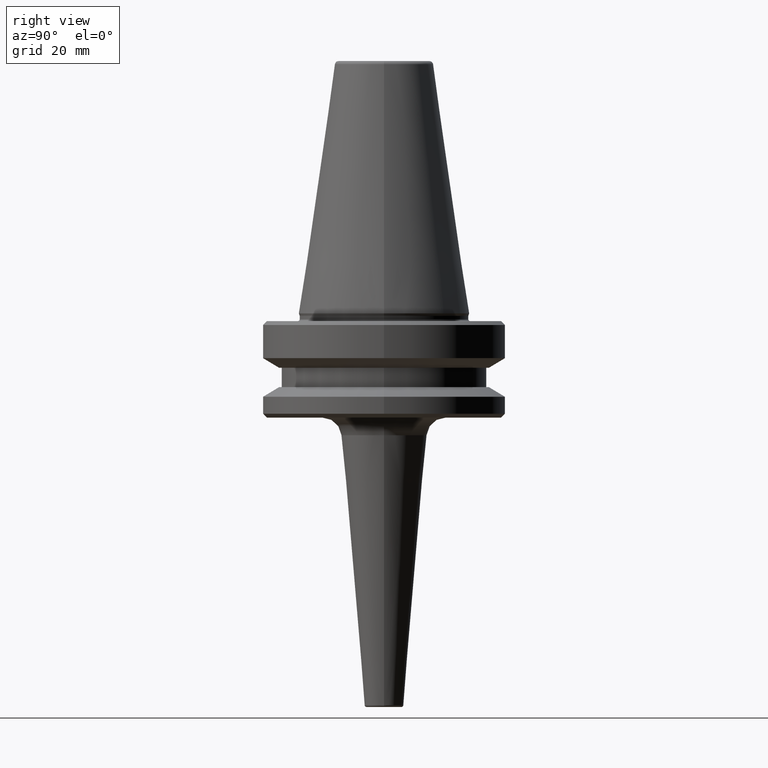
[diagram: clean part render]
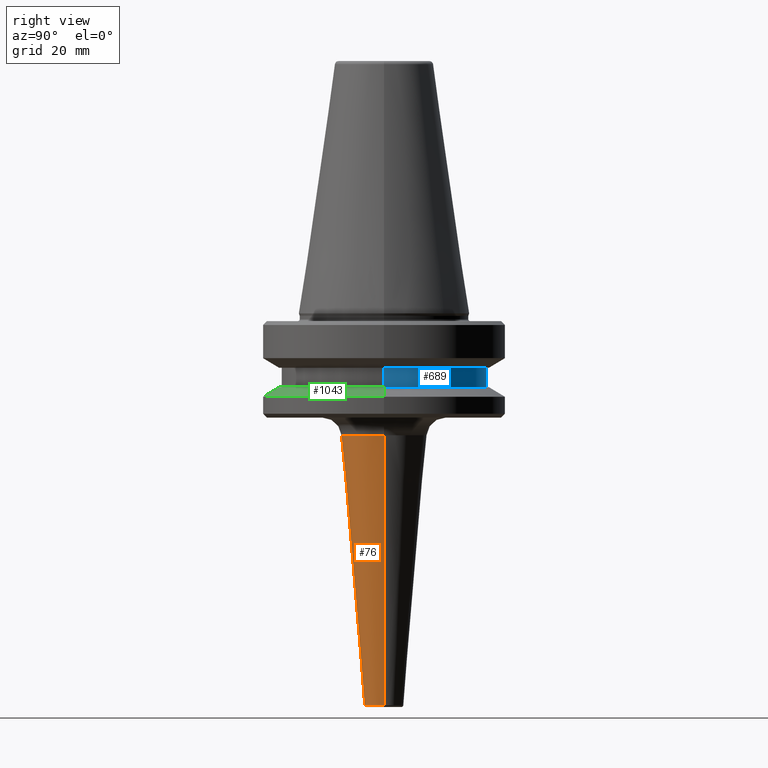
[diagram: same view with three faces highlighted in distinct colors, each labeled with its STEP entity id]
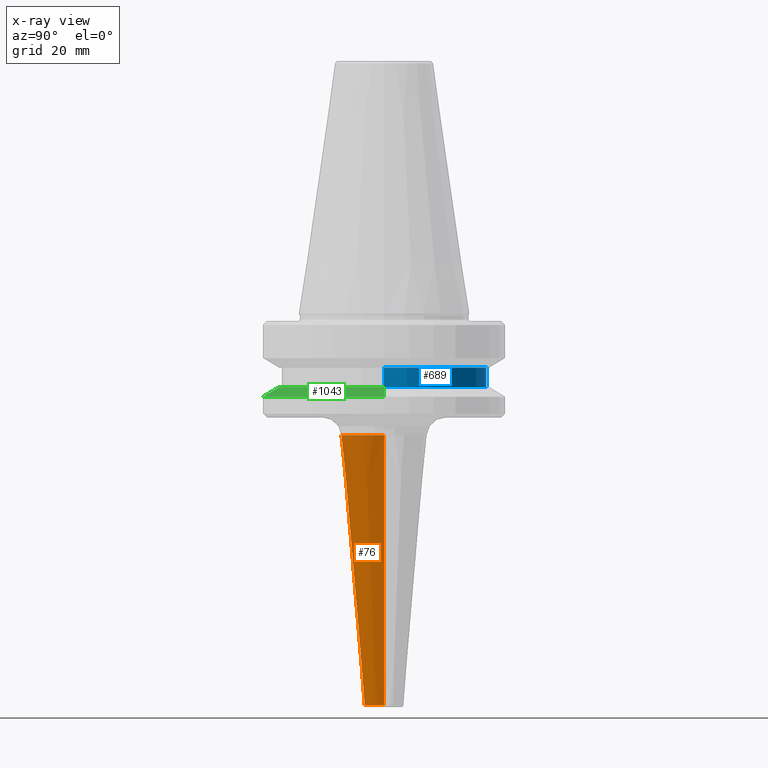
[diagram: x-ray of the same camera — body ghosted, the three highlighted faces saturated]
A machine part, right view with three faces highlighted in distinct colors.
The next image is the same camera in x-ray (body ghosted, the three faces saturated) — at least one of them is partly hidden behind the body in this view.
Their STEP definitions:

[orange] entity #76 — the highlighted conical surface has half-angle 4.953 deg.
#7 = ORIENTED_EDGE ( 'NONE', *, *, #261, .F. ) ;
#50 = VERTEX_POINT ( 'NONE', #683 ) ;
#76 = ADVANCED_FACE ( 'NONE', ( #908 ), #854, .T. ) ;
#112 = DIRECTION ( 'NONE',  ( -0.0000000000000000000, -0.0000000000000000000, 1.000000000000000000 ) ) ;
#117 = AXIS2_PLACEMENT_3D ( 'NONE', #180, #112, #257 ) ;
#154 = CARTESIAN_POINT ( 'NONE',  ( 11.10408196984262800, 0.0000000000000000000, -96.96828496336233600 ) ) ;
#180 = CARTESIAN_POINT ( 'NONE',  ( 0.0000000000000000000, 0.0000000000000000000, -96.96828496336233600 ) ) ;
#225 = EDGE_LOOP ( 'NONE', ( #646, #866, #425, #7 ) ) ;
#239 = CIRCLE ( 'NONE', #499, 11.10408196984262800 ) ;
#257 = DIRECTION ( 'NONE',  ( 1.000000000000000000, 0.0000000000000000000, 0.0000000000000000000 ) ) ;
#261 = EDGE_CURVE ( 'NONE', #685, #300, #239, .T. ) ;
#280 = CARTESIAN_POINT ( 'NONE',  ( 0.0000000000000000000, 0.0000000000000000000, -96.96828496336233600 ) ) ;
#296 = DIRECTION ( 'NONE',  ( -0.0000000000000000000, -0.0000000000000000000, 1.000000000000000000 ) ) ;
#300 = VERTEX_POINT ( 'NONE', #154 ) ;
#311 = EDGE_CURVE ( 'NONE', #50, #670, #507, .T. ) ;
#357 = DIRECTION ( 'NONE',  ( 1.000000000000000000, 0.0000000000000000000, 0.0000000000000000000 ) ) ;
#382 = EDGE_CURVE ( 'NONE', #670, #300, #665, .T. ) ;
#402 = VECTOR ( 'NONE', #805, 1000.000000000000200 ) ;
#425 = ORIENTED_EDGE ( 'NONE', *, *, #382, .T. ) ;
#443 = CARTESIAN_POINT ( 'NONE',  ( -11.10408196984262800, 1.359857844183761100E-015, -96.96828496336233600 ) ) ;
#449 = VECTOR ( 'NONE', #505, 1000.000000000000200 ) ;
#499 = AXIS2_PLACEMENT_3D ( 'NONE', #280, #829, #357 ) ;
#505 = DIRECTION ( 'NONE',  ( 0.08634300732914700100, 0.0000000000000000000, 0.9962654691824658300 ) ) ;
#507 = CIRCLE ( 'NONE', #761, 5.039591803015714100 ) ;
#547 = EDGE_CURVE ( 'NONE', #50, #685, #832, .T. ) ;
#558 = CARTESIAN_POINT ( 'NONE',  ( -11.10408196984262800, 1.664876173667597200E-015, -96.96828496336233600 ) ) ;
#636 = CARTESIAN_POINT ( 'NONE',  ( 5.039591803015705200, 0.0000000000000000000, -166.9431715036729100 ) ) ;
#646 = ORIENTED_EDGE ( 'NONE', *, *, #547, .F. ) ;
#665 = LINE ( 'NONE', #740, #449 ) ;
#670 = VERTEX_POINT ( 'NONE', #636 ) ;
#683 = CARTESIAN_POINT ( 'NONE',  ( -5.039591803015705200, 6.171719970572423100E-016, -166.9431715036729100 ) ) ;
#685 = VERTEX_POINT ( 'NONE', #558 ) ;
#710 = CARTESIAN_POINT ( 'NONE',  ( 0.0000000000000000000, 0.0000000000000000000, -166.9431715036729100 ) ) ;
#740 = CARTESIAN_POINT ( 'NONE',  ( 11.10408196984262800, 0.0000000000000000000, -96.96828496336233600 ) ) ;
#761 = AXIS2_PLACEMENT_3D ( 'NONE', #710, #296, #853 ) ;
#805 = DIRECTION ( 'NONE',  ( -0.08634300732914700100, 1.057396875543963500E-017, 0.9962654691824658300 ) ) ;
#829 = DIRECTION ( 'NONE',  ( -0.0000000000000000000, -0.0000000000000000000, 1.000000000000000000 ) ) ;
#832 = LINE ( 'NONE', #443, #402 ) ;
#853 = DIRECTION ( 'NONE',  ( 1.000000000000000000, 0.0000000000000000000, 0.0000000000000000000 ) ) ;
#854 = CONICAL_SURFACE ( 'NONE', #117, 11.10408196984262800, 0.08645065168737400800 ) ;
#866 = ORIENTED_EDGE ( 'NONE', *, *, #311, .T. ) ;
#908 = FACE_OUTER_BOUND ( 'NONE', #225, .T. ) ;

[blue] entity #689 — the highlighted cylindrical surface (partial cylindrical patch) has radius 26.5 mm, axis along (-0, -0, 1).
#2 = CARTESIAN_POINT ( 'NONE',  ( -26.50000000000019200, 3.245314017740509400E-015, 6.357346922996331500 ) ) ;
#10 = EDGE_LOOP ( 'NONE', ( #1039, #39, #16, #403 ) ) ;
#14 = DIRECTION ( 'NONE',  ( 1.000000000000000000, 0.0000000000000000000, 0.0000000000000000000 ) ) ;
#16 = ORIENTED_EDGE ( 'NONE', *, *, #937, .F. ) ;
#30 = EDGE_CURVE ( 'NONE', #159, #913, #106, .T. ) ;
#39 = ORIENTED_EDGE ( 'NONE', *, *, #567, .T. ) ;
#59 = LINE ( 'NONE', #276, #447 ) ;
#62 = DIRECTION ( 'NONE',  ( -0.0000000000000000000, -0.0000000000000000000, 1.000000000000000000 ) ) ;
#96 = AXIS2_PLACEMENT_3D ( 'NONE', #529, #62, #608 ) ;
#106 = CIRCLE ( 'NONE', #267, 26.50000000000019200 ) ;
#108 = DIRECTION ( 'NONE',  ( -0.0000000000000000000, -0.0000000000000000000, 1.000000000000000000 ) ) ;
#134 = VERTEX_POINT ( 'NONE', #879 ) ;
#159 = VERTEX_POINT ( 'NONE', #160 ) ;
#160 = CARTESIAN_POINT ( 'NONE',  ( 26.50000000000019200, 0.0000000000000000000, -84.50000000000068200 ) ) ;
#244 = DIRECTION ( 'NONE',  ( -0.0000000000000000000, -0.0000000000000000000, 1.000000000000000000 ) ) ;
#249 = EDGE_CURVE ( 'NONE', #159, #134, #59, .T. ) ;
#253 = VERTEX_POINT ( 'NONE', #580 ) ;
#254 = CIRCLE ( 'NONE', #96, 26.50000000000019200 ) ;
#267 = AXIS2_PLACEMENT_3D ( 'NONE', #441, #997, #14 ) ;
#276 = CARTESIAN_POINT ( 'NONE',  ( 26.50000000000019200, 0.0000000000000000000, 6.357346922996331500 ) ) ;
#292 = FACE_OUTER_BOUND ( 'NONE', #10, .T. ) ;
#326 = CARTESIAN_POINT ( 'NONE',  ( 0.0000000000000000000, 0.0000000000000000000, 6.357346922996331500 ) ) ;
#354 = DIRECTION ( 'NONE',  ( -0.0000000000000000000, -0.0000000000000000000, 1.000000000000000000 ) ) ;
#366 = LINE ( 'NONE', #2, #760 ) ;
#403 = ORIENTED_EDGE ( 'NONE', *, *, #249, .F. ) ;
#430 = AXIS2_PLACEMENT_3D ( 'NONE', #326, #108, #650 ) ;
#441 = CARTESIAN_POINT ( 'NONE',  ( 0.0000000000000000000, 0.0000000000000000000, -84.50000000000068200 ) ) ;
#447 = VECTOR ( 'NONE', #354, 1000.000000000000000 ) ;
#529 = CARTESIAN_POINT ( 'NONE',  ( 0.0000000000000000000, 0.0000000000000000000, -79.50000000000012800 ) ) ;
#567 = EDGE_CURVE ( 'NONE', #913, #253, #366, .T. ) ;
#580 = CARTESIAN_POINT ( 'NONE',  ( -26.50000000000019200, 3.245314017740509400E-015, -79.50000000000012800 ) ) ;
#591 = CARTESIAN_POINT ( 'NONE',  ( -26.50000000000019200, 3.245314017740509400E-015, -84.50000000000068200 ) ) ;
#608 = DIRECTION ( 'NONE',  ( 1.000000000000000000, 0.0000000000000000000, 0.0000000000000000000 ) ) ;
#650 = DIRECTION ( 'NONE',  ( 1.000000000000000000, 0.0000000000000000000, 0.0000000000000000000 ) ) ;
#689 = ADVANCED_FACE ( 'NONE', ( #292 ), #911, .T. ) ;
#760 = VECTOR ( 'NONE', #244, 1000.000000000000000 ) ;
#879 = CARTESIAN_POINT ( 'NONE',  ( 26.50000000000019200, 0.0000000000000000000, -79.50000000000012800 ) ) ;
#911 = CYLINDRICAL_SURFACE ( 'NONE', #430, 26.50000000000019200 ) ;
#913 = VERTEX_POINT ( 'NONE', #591 ) ;
#937 = EDGE_CURVE ( 'NONE', #134, #253, #254, .T. ) ;
#997 = DIRECTION ( 'NONE',  ( -0.0000000000000000000, -0.0000000000000000000, 1.000000000000000000 ) ) ;
#1039 = ORIENTED_EDGE ( 'NONE', *, *, #30, .T. ) ;

[green] entity #1043 — the highlighted conical surface has half-angle 60 deg.
#13 = DIRECTION ( 'NONE',  ( 1.000000000000000000, 0.0000000000000000000, 0.0000000000000000000 ) ) ;
#29 = VECTOR ( 'NONE', #576, 1000.000000000000000 ) ;
#49 = ORIENTED_EDGE ( 'NONE', *, *, #589, .T. ) ;
#67 = DIRECTION ( 'NONE',  ( 0.0000000000000000000, 0.0000000000000000000, -1.000000000000000000 ) ) ;
#86 = CARTESIAN_POINT ( 'NONE',  ( 0.0000000000000000000, 0.0000000000000000000, -87.00014200631733300 ) ) ;
#158 = DIRECTION ( 'NONE',  ( 1.000000000000000000, 0.0000000000000000000, 0.0000000000000000000 ) ) ;
#166 = ORIENTED_EDGE ( 'NONE', *, *, #647, .T. ) ;
#171 = CARTESIAN_POINT ( 'NONE',  ( -31.50000000000008500, 3.857637417314172900E-015, -87.00014200631733300 ) ) ;
#184 = VERTEX_POINT ( 'NONE', #171 ) ;
#189 = CARTESIAN_POINT ( 'NONE',  ( 31.50000000000008500, 3.857637417314172900E-015, -87.00014200631733300 ) ) ;
#195 = ORIENTED_EDGE ( 'NONE', *, *, #393, .F. ) ;
#202 = AXIS2_PLACEMENT_3D ( 'NONE', #86, #627, #158 ) ;
#245 = LINE ( 'NONE', #189, #29 ) ;
#283 = VERTEX_POINT ( 'NONE', #1042 ) ;
#340 = EDGE_LOOP ( 'NONE', ( #195, #917, #166, #49 ) ) ;
#393 = EDGE_CURVE ( 'NONE', #485, #283, #245, .T. ) ;
#398 = DIRECTION ( 'NONE',  ( -0.8660254037844332700, 0.0000000000000000000, -0.5000000000000093300 ) ) ;
#451 = DIRECTION ( 'NONE',  ( -1.000000000000000000, 0.0000000000000000000, 0.0000000000000000000 ) ) ;
#485 = VERTEX_POINT ( 'NONE', #640 ) ;
#492 = DIRECTION ( 'NONE',  ( -0.0000000000000000000, -0.0000000000000000000, 1.000000000000000000 ) ) ;
#519 = LINE ( 'NONE', #893, #940 ) ;
#522 = VERTEX_POINT ( 'NONE', #855 ) ;
#576 = DIRECTION ( 'NONE',  ( 0.8660254037844332700, 1.060575238724900300E-016, -0.5000000000000093300 ) ) ;
#589 = EDGE_CURVE ( 'NONE', #184, #283, #1014, .T. ) ;
#627 = DIRECTION ( 'NONE',  ( -0.0000000000000000000, -0.0000000000000000000, 1.000000000000000000 ) ) ;
#640 = CARTESIAN_POINT ( 'NONE',  ( 27.16962701892256100, 3.592478546794633900E-015, -84.50000000000068200 ) ) ;
#647 = EDGE_CURVE ( 'NONE', #522, #184, #519, .T. ) ;
#666 = EDGE_CURVE ( 'NONE', #522, #485, #707, .T. ) ;
#707 = CIRCLE ( 'NONE', #875, 27.16962701892256100 ) ;
#747 = AXIS2_PLACEMENT_3D ( 'NONE', #1032, #67, #451 ) ;
#748 = FACE_OUTER_BOUND ( 'NONE', #340, .T. ) ;
#855 = CARTESIAN_POINT ( 'NONE',  ( -27.16962701892256100, 0.0000000000000000000, -84.50000000000068200 ) ) ;
#875 = AXIS2_PLACEMENT_3D ( 'NONE', #982, #492, #13 ) ;
#893 = CARTESIAN_POINT ( 'NONE',  ( -31.50000000000008500, 0.0000000000000000000, -87.00014200631733300 ) ) ;
#917 = ORIENTED_EDGE ( 'NONE', *, *, #666, .F. ) ;
#940 = VECTOR ( 'NONE', #398, 1000.000000000000000 ) ;
#963 = CONICAL_SURFACE ( 'NONE', #747, 31.50000000000008500, 1.047197551196587000 ) ;
#982 = CARTESIAN_POINT ( 'NONE',  ( 0.0000000000000000000, 0.0000000000000000000, -84.50000000000068200 ) ) ;
#1014 = CIRCLE ( 'NONE', #202, 31.50000000000008500 ) ;
#1032 = CARTESIAN_POINT ( 'NONE',  ( 0.0000000000000000000, 0.0000000000000000000, -87.00014200631733300 ) ) ;
#1042 = CARTESIAN_POINT ( 'NONE',  ( 31.50000000000008500, 0.0000000000000000000, -87.00014200631733300 ) ) ;
#1043 = ADVANCED_FACE ( 'NONE', ( #748 ), #963, .T. ) ;